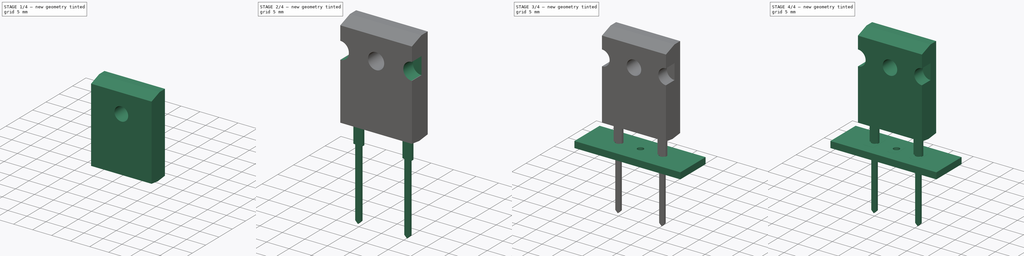
[diagram: build sequence overview — one tinted view per stage of 4, left to right]
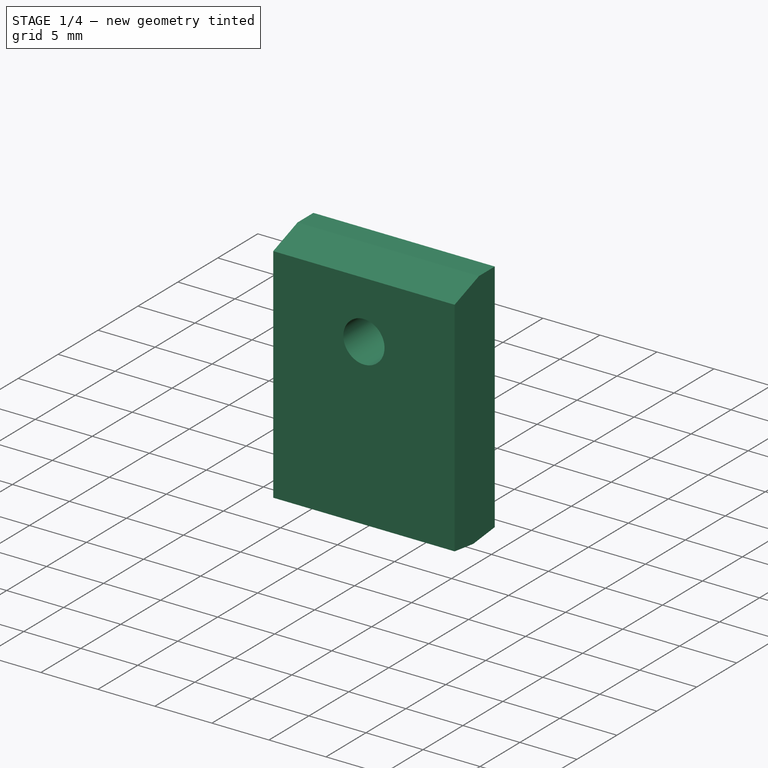
[diagram: stage 1 of 4 — iso view after this stage's code; geometry added in this stage tinted green]
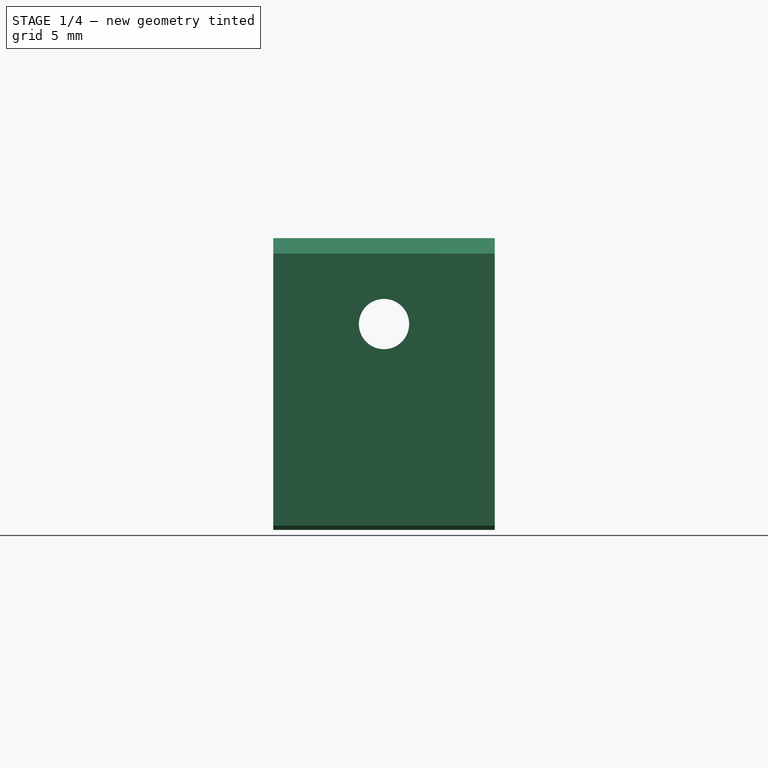
[diagram: stage 1 of 4 — front view after this stage's code; geometry added in this stage tinted green]
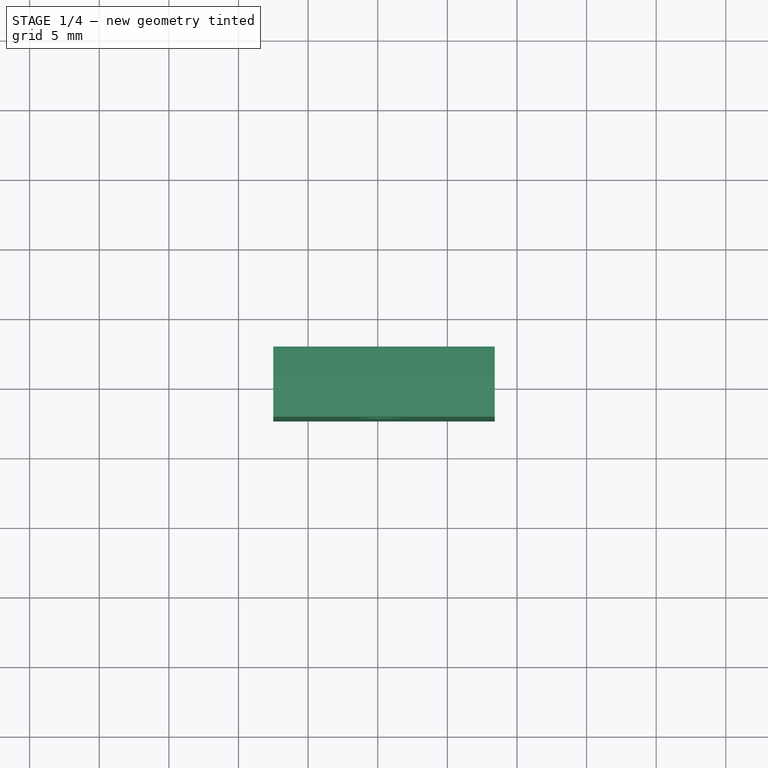
[diagram: stage 1 of 4 — top view after this stage's code; geometry added in this stage tinted green]
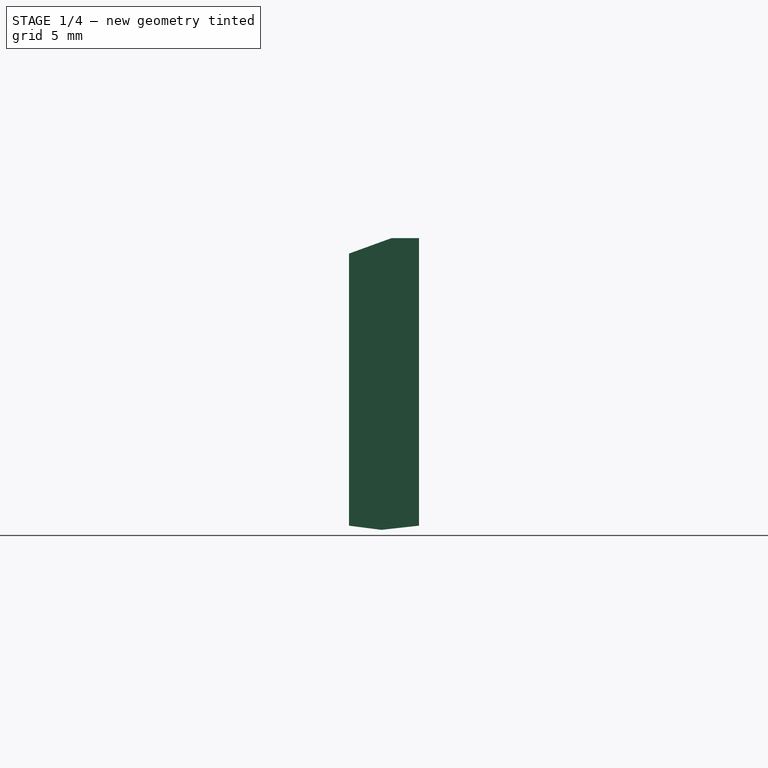
[diagram: stage 1 of 4 — right view after this stage's code; geometry added in this stage tinted green]
FCSTD DOCUMENT  (FreeCAD 0.16R6712 (Git))
Label: TO-247-2_Vertical
License: All rights reserved
LicenseURL: http://en.wikipedia.org/wiki/All_rights_reserved
objects: Part::FeaturePython×7, Sketcher::SketchObject×6, PartDesign::Pad×3, PartDesign::Pocket×3, App::DocumentObjectGroup×1, Part::MultiFuse×1
note: 26 computed .brp shape members not serialized (recipe doc carries the construction recipe); baked Part::Feature solids carry a one-line shape summary decoded from their .brp

FEATURE [Sketcher::SketchObject] Sketch001
  Placement = pos=(5.45,0,0) rot=(0.57735,0.57735,0.57735;2.0944rad)
  expr: Constraints[18] = 5.03 - 1.98
  sketch-geometry (7):
    g0: LineSegment StartX=0 StartY=4.32 StartZ=0 EndX=-2.33 EndY=4.62 EndZ=0
    g1: LineSegment StartX=-2.33 StartY=4.62 StartZ=0 EndX=-2.33 EndY=24.1599 EndZ=0
    g2: LineSegment StartX=-2.33 StartY=24.1599 StartZ=0 EndX=0.72 EndY=25.27 EndZ=0
    g3: LineSegment StartX=0.72 StartY=25.27 StartZ=0 EndX=2.7 EndY=25.27 EndZ=0
    g4: LineSegment StartX=2.7 StartY=25.27 StartZ=0 EndX=2.7 EndY=4.62 EndZ=0
    g5: LineSegment StartX=2.7 StartY=4.62 StartZ=0 EndX=0 EndY=4.32 EndZ=0
    g6: LineSegment [constr] StartX=-2.33 StartY=4.62 StartZ=0 EndX=2.7 EndY=4.62 EndZ=0
  constraints (20):
    c: PointOnObject(g0,g-2)
    c: Coincident(g1,g0)
    c: Vertical(g1)
    c: Coincident(g2,g1)
    c: Horizontal(g3)
    c: Coincident(g4,g3)
    c: Vertical(g4)
    c: Coincident(g5,g4)
    c: Coincident(g5,g0)
    c: Coincident(g6,g0)
    c: Coincident(g6,g4)
    c: Horizontal(g6)
    c: Angle(g1,g2) = 1.91986
    c: DistanceX(g0,g4) = 2.7
    c: DistanceX(g1,g3) = 5.03
    c: DistanceY(g0,g4) = 0.3
    c: DistanceY(g0,g3) = 20.95
    c: Coincident(g2,g3)
    c: DistanceX(g1,g2) = 3.05
    c: DistanceY(g-1,g0) = 4.32
FEATURE [PartDesign::Pad] Pad001
  Length = 15.9
  Length2 = 100
  Midplane = true
  Placement = pos=(5.45,0,0) rot=(0.57735,0.57735,0.57735;2.0944rad)
  Sketch = -> Sketch001
  Type = 0
FEATURE [App::DocumentObjectGroup] TO_247_3_Vertical_fp
  Group = -> [FCrtYd_lines,FFab_lines,Filk_lines,TopPads,BotPads,THPs,newPCB]
FEATURE [Sketcher::SketchObject] Sketch006
  ExternalGeometry = -> [Pad001]
  Placement = pos=(5.45,2.7,0) rot=(0.57735,0.57735,0.57735;4.18879rad)
  Support = -> Pad001 [Face5]
  expr: Constraints[3] = 3.61 / 2
  sketch-geometry (2):
    g0: LineSegment [constr] StartX=25.27 StartY=0 StartZ=0 EndX=19.1 EndY=0 EndZ=0
    g1: Circle CenterX=19.1 CenterY=0 CenterZ=0 NormalX=0 NormalY=0 NormalZ=1 Radius=1.805
  constraints (6):
    c: PointOnObject(g0,g-3)
    c: Horizontal(g0)
    c: Coincident(g1,g0)
    c: Radius(g1) = 1.805
    c: Symmetric(g-3,g-3,g0)
    c: DistanceX(g0,g0) = 6.17
FEATURE [PartDesign::Pocket] Pocket
  Length = 5
  Placement = pos=(5.45,0,0) rot=(0.57735,0.57735,0.57735;2.0944rad)
  Sketch = -> Sketch006
  Type = 1
FEATURE [Sketcher::SketchObject] Sketch007
  ExternalGeometry = -> [Pocket]
  Placement = pos=(5.45,2.7,0) rot=(0.57735,0.57735,0.57735;4.18879rad)
  Support = -> Pocket [Face6]
  expr: Constraints[6] = 7.19 / 2
  sketch-geometry (13):
    g0: Circle CenterX=19.1 CenterY=0 CenterZ=0 NormalX=0 NormalY=0 NormalZ=1 Radius=3.595
    g1: LineSegment StartX=22.9844 StartY=-7.01 StartZ=0 EndX=6.56 EndY=-7.01 EndZ=0
    g2: LineSegment StartX=6.56 StartY=-7.01 StartZ=0 EndX=6.56 EndY=7.01 EndZ=0
    g3: GeomPoint [constr] X=6.56 Y=0 Z=0
    g4: LineSegment StartX=6.56 StartY=7.01 StartZ=0 EndX=22.9844 EndY=7.01 EndZ=0
    g5: LineSegment StartX=22.9844 StartY=7.01 StartZ=0 EndX=24.08 EndY=4 EndZ=0
    g6: LineSegment StartX=24.08 StartY=4 StartZ=0 EndX=24.08 EndY=3.25 EndZ=0
    g7: LineSegment StartX=24.08 StartY=3.25 StartZ=0 EndX=23.58 EndY=3.25 EndZ=0
    g8: LineSegment StartX=23.58 StartY=3.25 StartZ=0 EndX=23.58 EndY=-3.25 EndZ=0
    g9: LineSegment StartX=23.58 StartY=-3.25 StartZ=0 EndX=24.08 EndY=-3.25 EndZ=0
    g10: LineSegment StartX=24.08 StartY=-3.25 StartZ=0 EndX=24.08 EndY=-4 EndZ=0
    g11: LineSegment StartX=24.08 StartY=-4 StartZ=0 EndX=22.9844 EndY=-7.01 EndZ=0
    g12: GeomPoint [constr] X=23.58 Y=0 Z=0
  constraints (35):
    c: Coincident(g0,g-3)
    c: Coincident(g1,g2)
    c: Horizontal(g1)
    c: Vertical(g2)
    c: PointOnObject(g3,g-1)
    c: Symmetric(g2,g2,g3)
    c: Radius(g0) = 3.595
    c: Coincident(g4,g2)
    c: Horizontal(g4)
    c: Coincident(g5,g4)
    c: Coincident(g6,g5)
    c: Coincident(g7,g6)
    c: Coincident(g8,g7)
    c: Vertical(g8)
    c: Coincident(g8,g9)
    c: Horizontal(g9)
    c: Horizontal(g7)
    c: Equal(g7,g9)
    c: Vertical(g6)
    c: Coincident(g10,g9)
    c: Vertical(g10)
    c: Coincident(g11,g10)
    c: Equal(g6,g10)
    c: Equal(g1,g4)
    c: Coincident(g1,g11)
    c: PointOnObject(g12,g-1)
    c: Symmetric(g8,g8,g12)
    c: DistanceX(g9,g-4) = 1.19
    c: DistanceX(g1,g10) = 17.52
    c: DistanceY(g2,g2) = 14.02
    c: DistanceY(g8,g8) = 6.5
    c: DistanceY(g6,g6) = 0.75
    c: Equal(g11,g5)
    c: Angle(g4,g5) = 1.91986
    c: DistanceX(g7,g7) = 0.5
FEATURE [PartDesign::Pocket] Pocket001
  Length = 0.05
  Placement = pos=(5.45,0,0) rot=(0.57735,0.57735,0.57735;2.0944rad)
  Sketch = -> Sketch007
  Type = 0
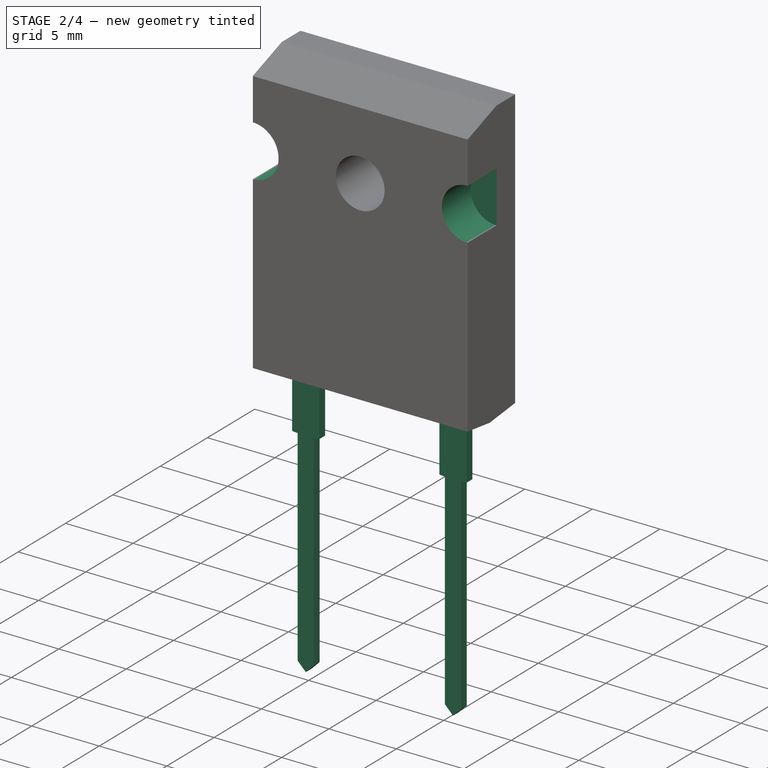
[diagram: stage 2 of 4 — iso view after this stage's code; geometry added in this stage tinted green]
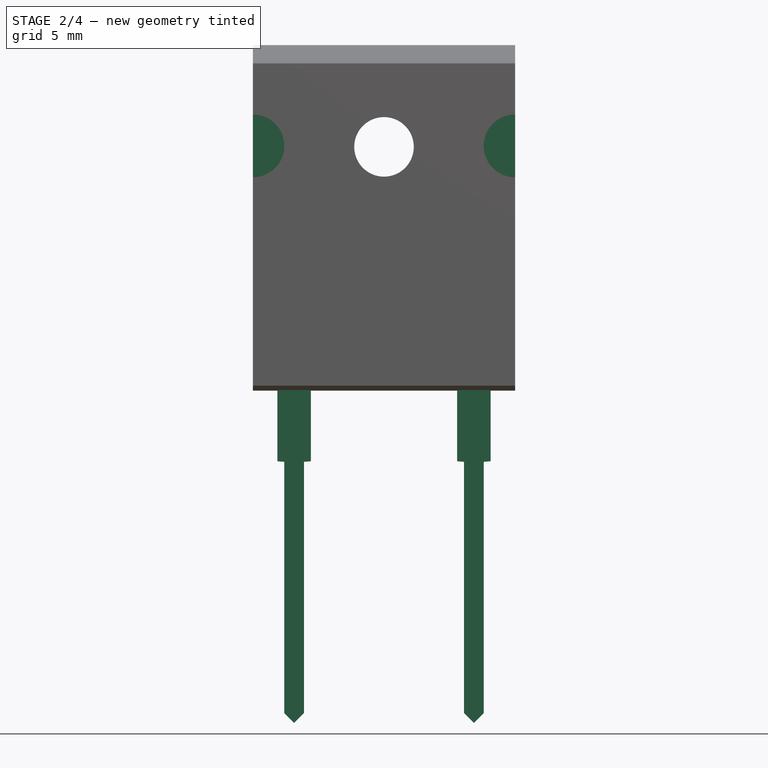
[diagram: stage 2 of 4 — front view after this stage's code; geometry added in this stage tinted green]
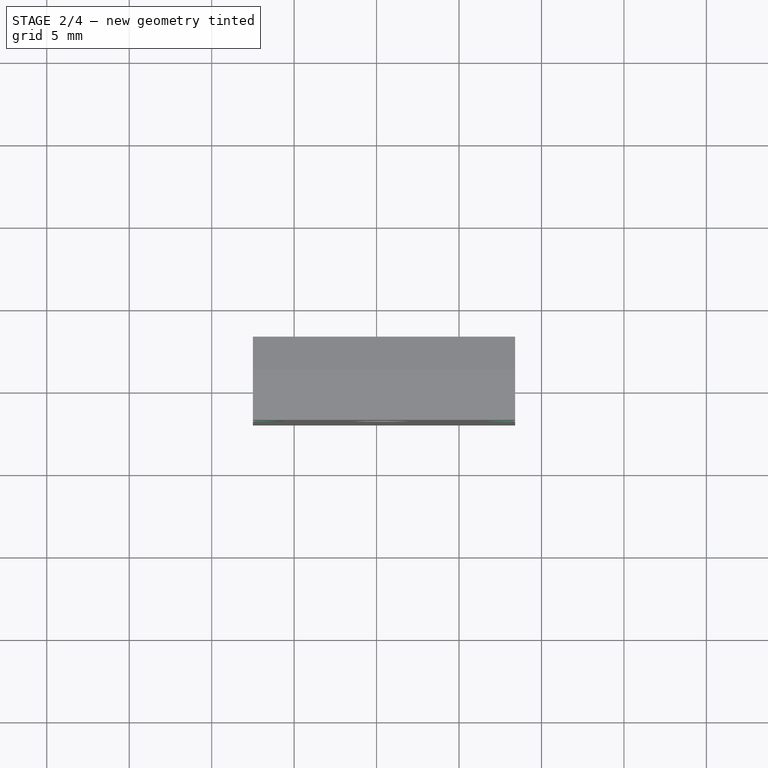
[diagram: stage 2 of 4 — top view after this stage's code; geometry added in this stage tinted green]
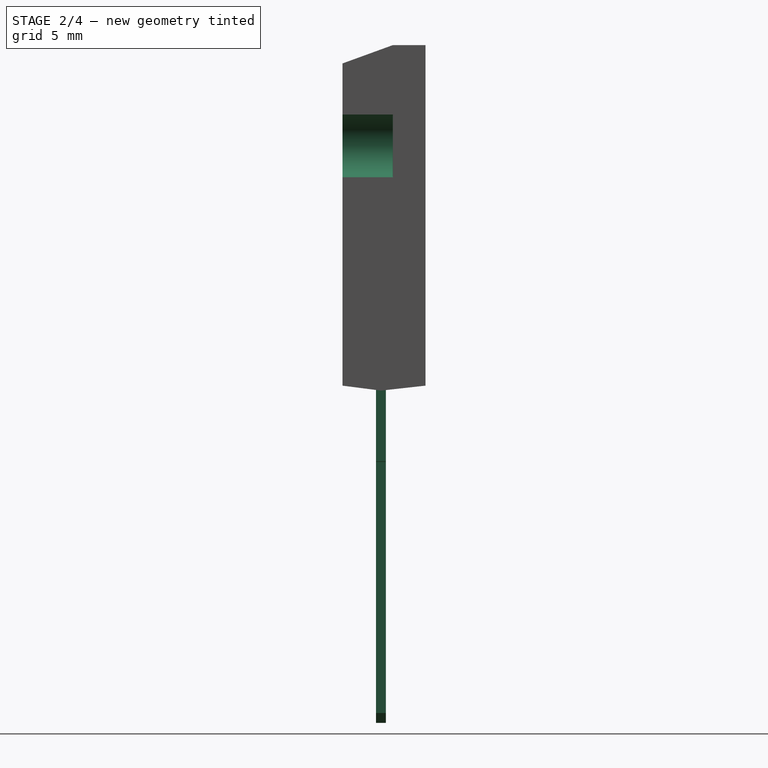
[diagram: stage 2 of 4 — right view after this stage's code; geometry added in this stage tinted green]
FEATURE [Sketcher::SketchObject] Sketch
  Placement = pos=(0,0,0) rot=(1,0,0;1.5708rad)
  expr: Constraints[25] = 20.18 - 4.35
  expr: Constraints[22] = 5
  sketch-geometry (34):
    g0: LineSegment [constr] StartX=-0.6 StartY=0 StartZ=0 EndX=0.6 EndY=0 EndZ=0
    g1: LineSegment [constr] StartX=-1.015 StartY=0.0363078 StartZ=0 EndX=1.015 EndY=0.0363078 EndZ=0
    g2: GeomPoint [constr] X=0 Y=0.0363078 Z=0
    g3: LineSegment [constr] StartX=-0.6 StartY=-15.23 StartZ=0 EndX=0.6 EndY=-15.23 EndZ=0
    g4: GeomPoint [constr] X=0 Y=-15.23 Z=0
    g5: LineSegment StartX=-1.015 StartY=0.0363078 StartZ=0 EndX=-0.6 EndY=0 EndZ=0
    g6: LineSegment StartX=-0.6 StartY=0 StartZ=0 EndX=-0.6 EndY=-15.23 EndZ=0
    g7: LineSegment StartX=-0.6 StartY=-15.23 StartZ=0 EndX=0 EndY=-15.83 EndZ=0
    g8: LineSegment StartX=0 StartY=-15.83 StartZ=0 EndX=0.6 EndY=-15.23 EndZ=0
    g9: LineSegment StartX=0.6 StartY=-15.23 StartZ=0 EndX=0.6 EndY=0 EndZ=0
    g10: LineSegment StartX=0.6 StartY=0 StartZ=0 EndX=1.015 EndY=0.0363078 EndZ=0
    g11: LineSegment StartX=1.015 StartY=0.0363078 StartZ=0 EndX=1.015 EndY=5 EndZ=0
    g12: LineSegment StartX=1.015 StartY=5 StartZ=0 EndX=-1.015 EndY=5 EndZ=0
    g13: LineSegment StartX=-1.015 StartY=5 StartZ=0 EndX=-1.015 EndY=0.0363078 EndZ=0
    g14: LineSegment [constr] StartX=0 StartY=-15.83 StartZ=0 EndX=0 EndY=0.0363078 EndZ=0
    g15: LineSegment [constr] StartX=10.3 StartY=0 StartZ=0 EndX=11.5 EndY=0 EndZ=0
    g16: LineSegment [constr] StartX=9.885 StartY=0.0363078 StartZ=0 EndX=11.915 EndY=0.0363078 EndZ=0
    g17: GeomPoint [constr] X=10.9 Y=0.0363078 Z=0
    g18: LineSegment [constr] StartX=10.3 StartY=-15.23 StartZ=0 EndX=11.5 EndY=-15.23 EndZ=0
    g19: GeomPoint [constr] X=10.9 Y=-15.23 Z=0
    g20: LineSegment StartX=9.885 StartY=0.0363078 StartZ=0 EndX=10.3 EndY=0 EndZ=0
    g21: LineSegment StartX=10.3 StartY=0 StartZ=0 EndX=10.3 EndY=-15.23 EndZ=0
    g22: LineSegment StartX=10.3 StartY=-15.23 StartZ=0 EndX=10.9 EndY=-15.83 EndZ=0
    g23: LineSegment StartX=10.9 StartY=-15.83 StartZ=0 EndX=11.5 EndY=-15.23 EndZ=0
    g24: LineSegment StartX=11.5 StartY=-15.23 StartZ=0 EndX=11.5 EndY=0 EndZ=0
    g25: LineSegment StartX=11.5 StartY=0 StartZ=0 EndX=11.915 EndY=0.0363078 EndZ=0
    g26: LineSegment StartX=11.915 StartY=0.0363078 StartZ=0 EndX=11.915 EndY=5 EndZ=0
    g27: LineSegment StartX=11.915 StartY=5 StartZ=0 EndX=9.885 EndY=5 EndZ=0
    g28: LineSegment StartX=9.885 StartY=5 StartZ=0 EndX=9.885 EndY=0.0363078 EndZ=0
    g29: LineSegment [constr] StartX=10.9 StartY=-15.83 StartZ=0 EndX=10.9 EndY=0.0363078 EndZ=0
    g30: GeomPoint [constr] X=10.9 Y=0 Z=0
    g31: LineSegment [constr] StartX=0 StartY=-15.83 StartZ=0 EndX=10.9 EndY=-15.83 EndZ=0
    g32: LineSegment [constr] StartX=-1.015 StartY=5 StartZ=0 EndX=9.885 EndY=5 EndZ=0
    g33: GeomPoint [constr] X=0 Y=0 Z=0
  constraints (80):
    c: DistanceX(g0,g0) = 1.2
    c: Horizontal(g1)
    c: PointOnObject(g2,g-2)
    c: Symmetric(g1,g1,g2)
    c: Horizontal(g3)
    c: Equal(g0,g3) = 0.8
    c: PointOnObject(g4,g-2)
    c: Symmetric(g3,g3,g4)
    c: Coincident(g5,g1)
    c: Coincident(g5,g0)
    c: Coincident(g6,g0)
    c: Coincident(g6,g3)
    c: Coincident(g7,g3)
    c: Coincident(g8,g7)
    c: Coincident(g8,g3)
    c: PointOnObject(g7,g-2)
    c: Coincident(g9,g3)
    c: Coincident(g9,g0)
    c: Coincident(g10,g0)
    c: Coincident(g10,g1)
    c: Horizontal(g12)
    c: Angle(g9,g8) = 2.35619
    c: DistanceY(g-1,g12) = 5
    c: Coincident(g14,g7)
    c: Coincident(g14,g2)
    c: DistanceY(g7,g-1) = 15.83
    c: Horizontal(g15)
    c: Equal(g0,g15) = 0.8
    c: Horizontal(g16)
    c: Symmetric(g16,g16,g17)
    c: Horizontal(g18)
    c: Equal(g15,g18) = 0.8
    c: Symmetric(g18,g18,g19)
    c: Coincident(g20,g16)
    c: Coincident(g20,g15)
    c: Coincident(g21,g15)
    c: Coincident(g21,g18)
    c: Coincident(g22,g18)
    c: Coincident(g23,g22)
    c: Coincident(g23,g18)
    c: Coincident(g24,g18)
    c: Coincident(g24,g15)
    c: Coincident(g25,g15)
    c: Coincident(g25,g16)
    c: Horizontal(g27)
    c: Angle(g24,g23) = 2.35619
    c: Coincident(g29,g22)
    c: Coincident(g29,g17)
    c: Vertical(g29)
    c: PointOnObject(g30,g29)
    c: Symmetric(g15,g15,g30)
    c: PointOnObject(g19,g29)
    c: Coincident(g31,g7)
    c: Coincident(g31,g22)
    c: Horizontal(g31)
    c: PointOnObject(g15,g-1)
    c: Coincident(g32,g12)
    c: Coincident(g32,g27)
    c: Horizontal(g32)
    c: Coincident(g1,g13)
    c: Coincident(g12,g13)
    c: Coincident(g11,g12)
    c: Coincident(g1,g11)
    c: Vertical(g11)
    c: Vertical(g13)
    c: Coincident(g27,g28)
    c: Coincident(g26,g27)
    c: Coincident(g16,g28)
    c: Coincident(g16,g26)
    c: Vertical(g28)
    c: Vertical(g26)
    c: DistanceX(g12,g12) = 2.03
    c: Equal(g12,g27)
    c: Angle(g20,g28) = 1.65806
    c: Angle(g11,g10) = 1.65806
    c: Horizontal(g0)
    c: PointOnObject(g33,g14)
    c: Symmetric(g0,g0,g33)
    c: Coincident(g33,g-1)
    c: DistanceX(g31,g31) = 10.9
FEATURE [PartDesign::Pad] Pad
  Length = 0.6
  Length2 = 100
  Midplane = true
  Placement = pos=(0,0,0) rot=(1,0,0;1.5708rad)
  Reversed = true
  Sketch = -> Sketch
  Type = 0
  expr: Length = 0.6
FEATURE [Sketcher::SketchObject] Sketch005
  Placement = pos=(0,1.7,0) rot=(1,0,0;1.5708rad)
  sketch-geometry (6):
    g0: LineSegment StartX=-2.05 StartY=25.1 StartZ=0 EndX=12.95 EndY=25.1 EndZ=0
    g1: LineSegment StartX=12.95 StartY=25.1 StartZ=0 EndX=12.95 EndY=7.1 EndZ=0
    g2: LineSegment StartX=12.95 StartY=7.1 StartZ=0 EndX=-2.05 EndY=7.1 EndZ=0
    g3: LineSegment StartX=-2.05 StartY=7.1 StartZ=0 EndX=-2.05 EndY=25.1 EndZ=0
    g4: Circle CenterX=5.45 CenterY=19.1 CenterZ=0 NormalX=0 NormalY=0 NormalZ=1 Radius=3.7
    g5: LineSegment [constr] StartX=5.45 StartY=19.1 StartZ=0 EndX=5.45 EndY=25.1 EndZ=0
  constraints (17):
    c: Coincident(g0,g1)
    c: Coincident(g1,g2)
    c: Coincident(g2,g3)
    c: Coincident(g3,g0)
    c: Horizontal(g0)
    c: Horizontal(g2)
    c: Vertical(g1)
    c: Vertical(g3)
    c: DistanceX(g-1,g4) = 5.45
    c: Radius(g4) = 3.7
    c: DistanceY(g-1,g4) = 19.1
    c: Coincident(g5,g4)
    c: Vertical(g5)
    c: Symmetric(g0,g0,g5)
    c: DistanceY(g1,g1) = 18
    c: DistanceX(g0,g0) = 15
    c: DistanceY(g5,g5) = 6
FEATURE [PartDesign::Pad] Pad003
  Length = 1.97
  Length2 = 100
  Midplane = true
  Placement = pos=(0,1.7,0) rot=(1,0,0;1.5708rad)
  Sketch = -> Sketch005
  Type = 0
FEATURE [Sketcher::SketchObject] Sketch008
  ExternalGeometry = -> [Pocket001]
  Placement = pos=(5.45,-2.33,0) rot=(-0.57735,-0.57735,0.57735;4.18879rad)
  Support = -> Pocket001 [Face3]
  sketch-geometry (5):
    g0: ArcOfCircle CenterX=-19.1599 CenterY=7.95 CenterZ=0 NormalX=0 NormalY=0 NormalZ=1 Radius=1.905 StartAngle=3.14159 EndAngle=6.28319
    g1: ArcOfCircle CenterX=-19.1599 CenterY=-7.95 CenterZ=0 NormalX=0 NormalY=0 NormalZ=1 Radius=1.905 StartAngle=0 EndAngle=3.14159
    g2: LineSegment [constr] StartX=-19.1599 StartY=7.95 StartZ=0 EndX=-19.1599 EndY=-7.95 EndZ=0
    g3: LineSegment StartX=-21.0649 StartY=7.95 StartZ=0 EndX=-17.2549 EndY=7.95 EndZ=0
    g4: LineSegment StartX=-21.0649 StartY=-7.95 StartZ=0 EndX=-17.2549 EndY=-7.95 EndZ=0
  constraints (16):
    c: PointOnObject(g0,g-3)
    c: PointOnObject(g0,g-3)
    c: PointOnObject(g0,g-3)
    c: PointOnObject(g1,g-4)
    c: PointOnObject(g1,g-4)
    c: PointOnObject(g1,g-4)
    c: Coincident(g2,g0)
    c: Coincident(g2,g1)
    c: Vertical(g2)
    c: Equal(g0,g1)
    c: DistanceX(g0,g0) = 3.81
    c: DistanceX(g-3,g0) = 5
    c: Coincident(g3,g0)
    c: Coincident(g3,g0)
    c: Coincident(g4,g1)
    c: Coincident(g4,g1)
FEATURE [PartDesign::Pocket] Pocket002
  Length = 3.05
  Placement = pos=(5.45,0,0) rot=(0.57735,0.57735,0.57735;2.0944rad)
  Sketch = -> Sketch008
  Type = 0
  expr: Length = 5.03 - 1.98
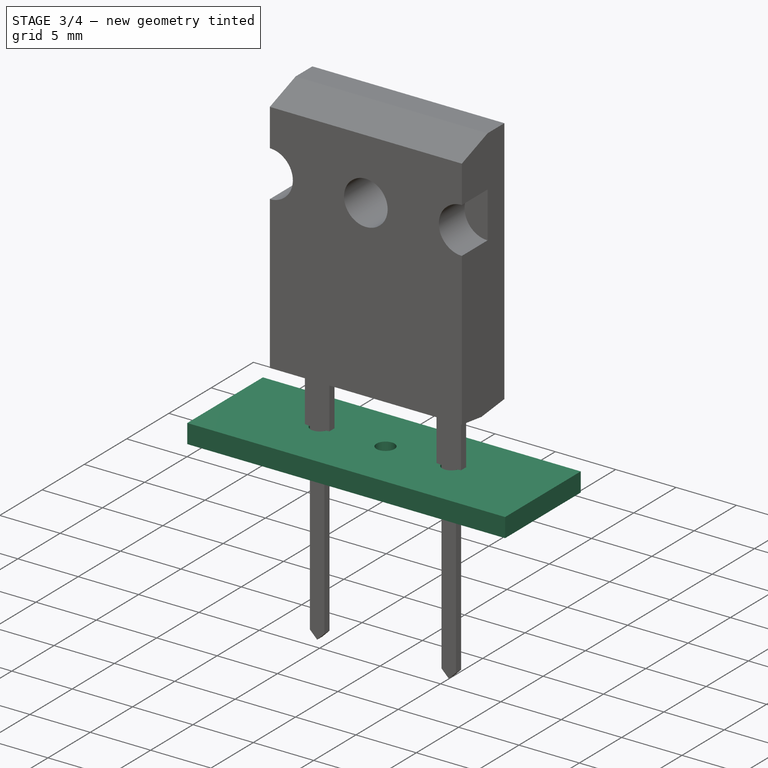
[diagram: stage 3 of 4 — iso view after this stage's code; geometry added in this stage tinted green]
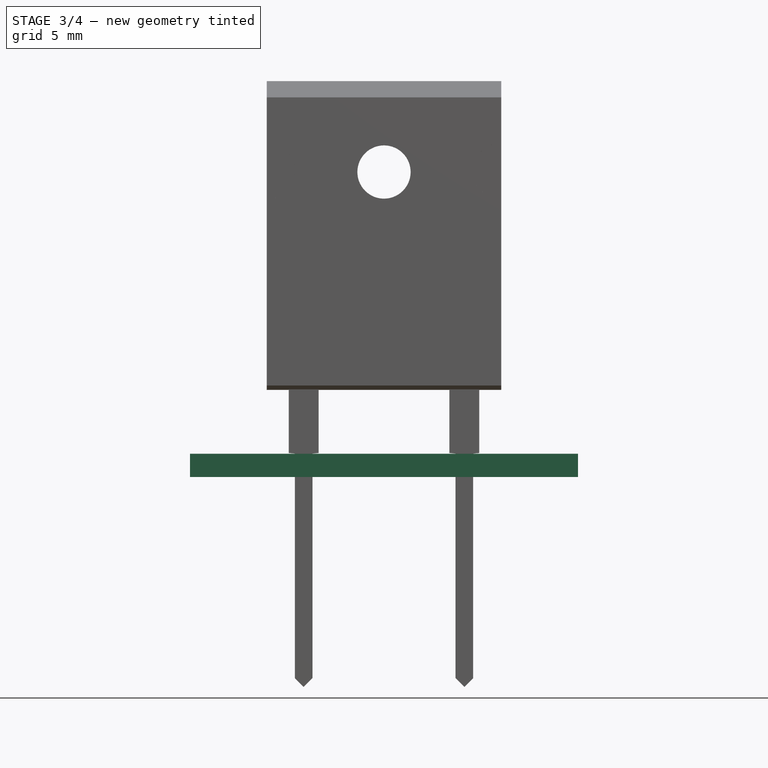
[diagram: stage 3 of 4 — front view after this stage's code; geometry added in this stage tinted green]
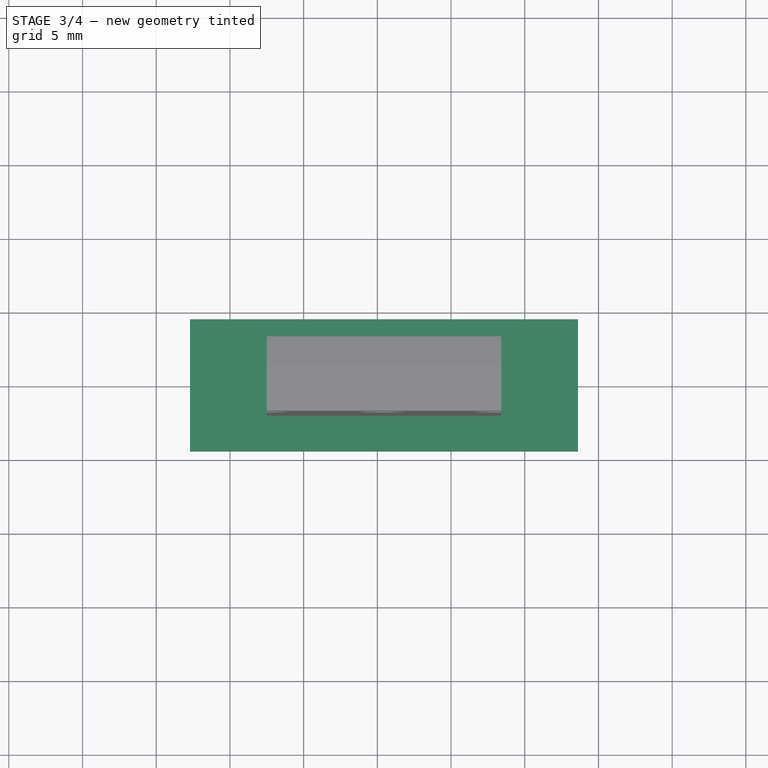
[diagram: stage 3 of 4 — top view after this stage's code; geometry added in this stage tinted green]
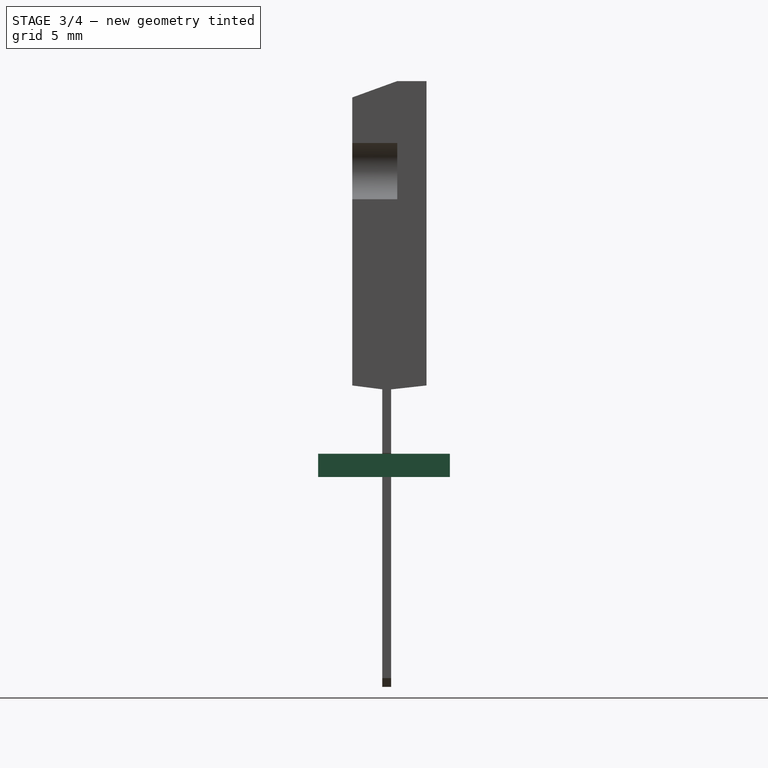
[diagram: stage 3 of 4 — right view after this stage's code; geometry added in this stage tinted green]
FEATURE [Part::FeaturePython] newPCB  label="Pcb"  # a2plus imported part (geometry in sourceFile) (typed FeaturePython)
  fixedPosition = true
FEATURE [Part::MultiFuse] Pocket002_mp_cp  label="TO-247-2_Vertical"
  Shapes = -> [Pocket002,Pad003,Pad]
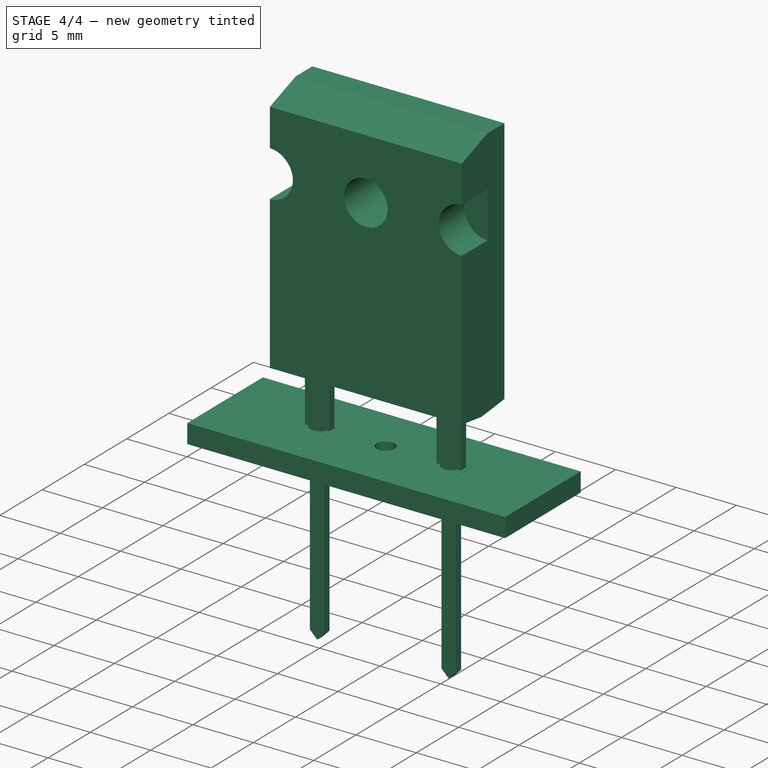
[diagram: stage 4 of 4 — iso view after this stage's code; geometry added in this stage tinted green]
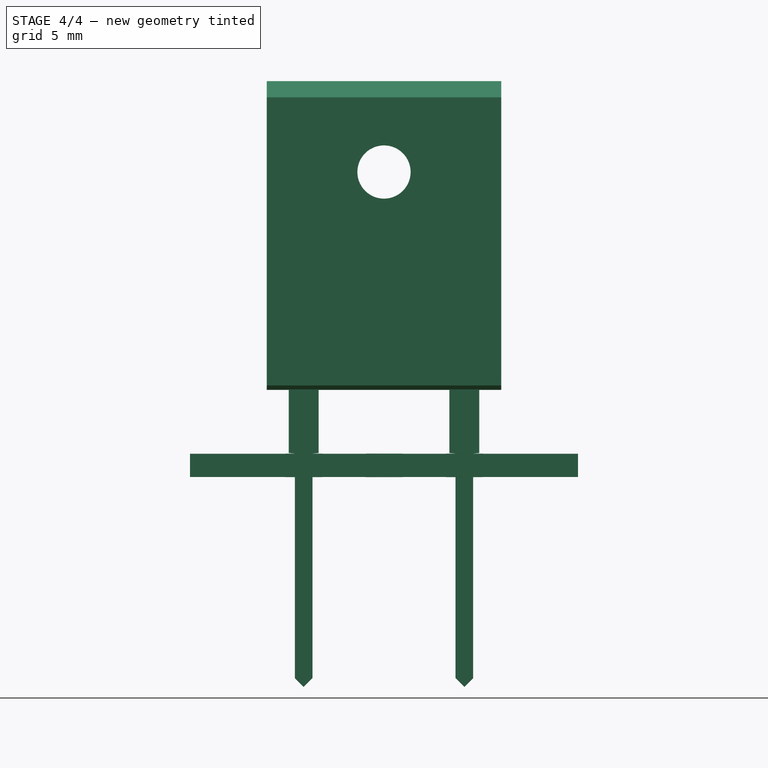
[diagram: stage 4 of 4 — front view after this stage's code; geometry added in this stage tinted green]
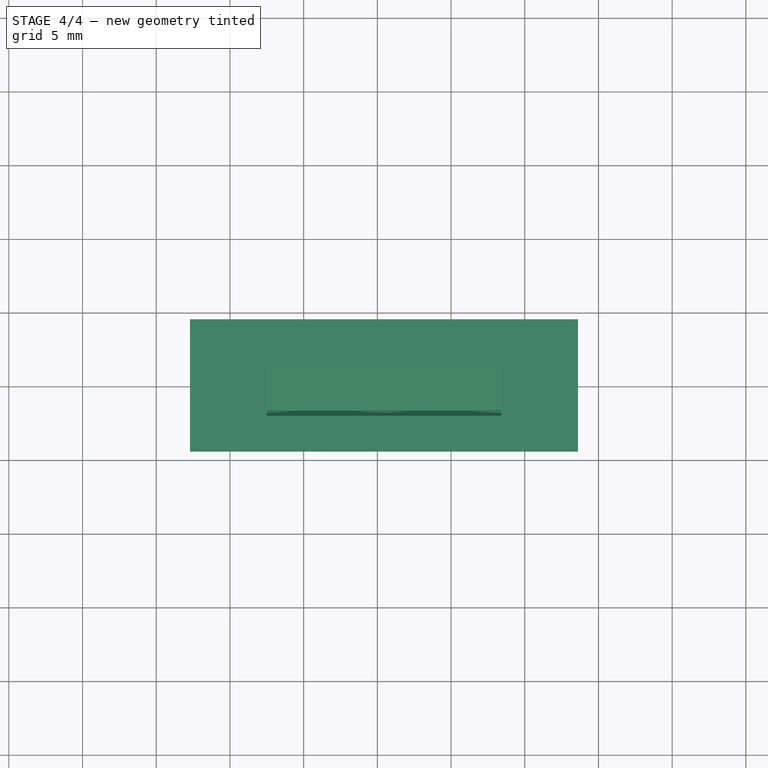
[diagram: stage 4 of 4 — top view after this stage's code; geometry added in this stage tinted green]
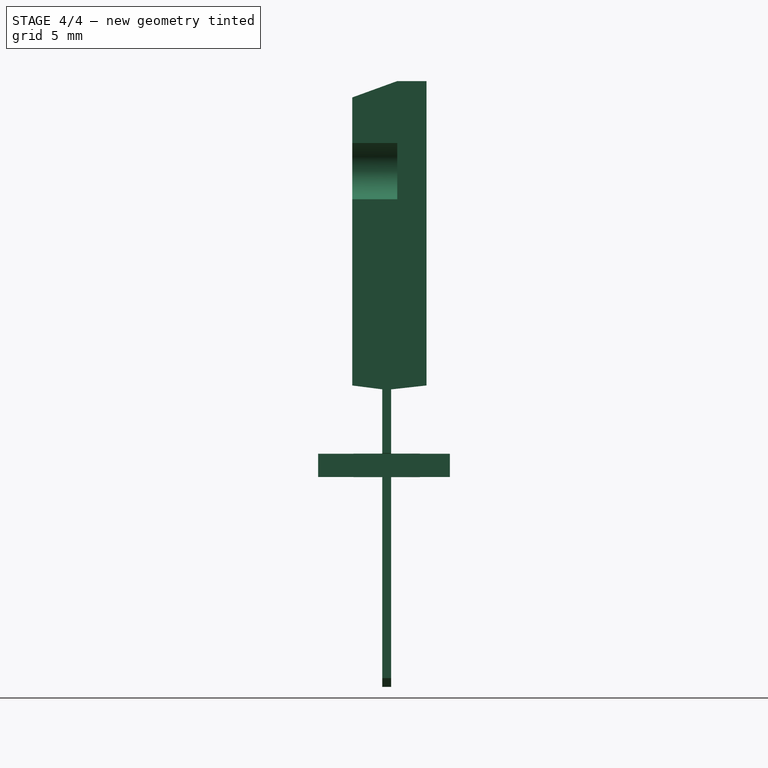
[diagram: stage 4 of 4 — right view after this stage's code; geometry added in this stage tinted green]
FEATURE [Part::FeaturePython] FCrtYd_lines  label="FCrtYd"  # a2plus imported part (geometry in sourceFile) (typed FeaturePython)
  fixedPosition = true
FEATURE [Part::FeaturePython] FFab_lines  label="FFab"  # a2plus imported part (geometry in sourceFile) (typed FeaturePython)
  fixedPosition = true
FEATURE [Part::FeaturePython] Filk_lines  label="FrontSilk"  # a2plus imported part (geometry in sourceFile) (typed FeaturePython)
  fixedPosition = true
FEATURE [Part::FeaturePython] TopPads  # a2plus imported part (geometry in sourceFile) (typed FeaturePython)
  fixedPosition = true
FEATURE [Part::FeaturePython] BotPads  # a2plus imported part (geometry in sourceFile) (typed FeaturePython)
  fixedPosition = true
FEATURE [Part::FeaturePython] THPs  label="PTHs"  # a2plus imported part (geometry in sourceFile) (typed FeaturePython)
  fixedPosition = true
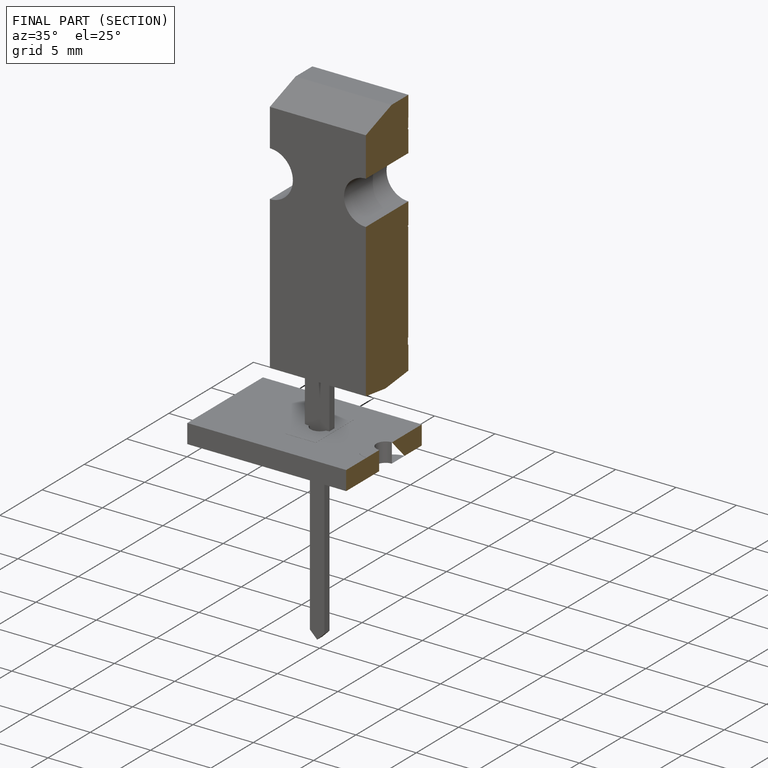
[diagram: finished part — half-section view (interior)]
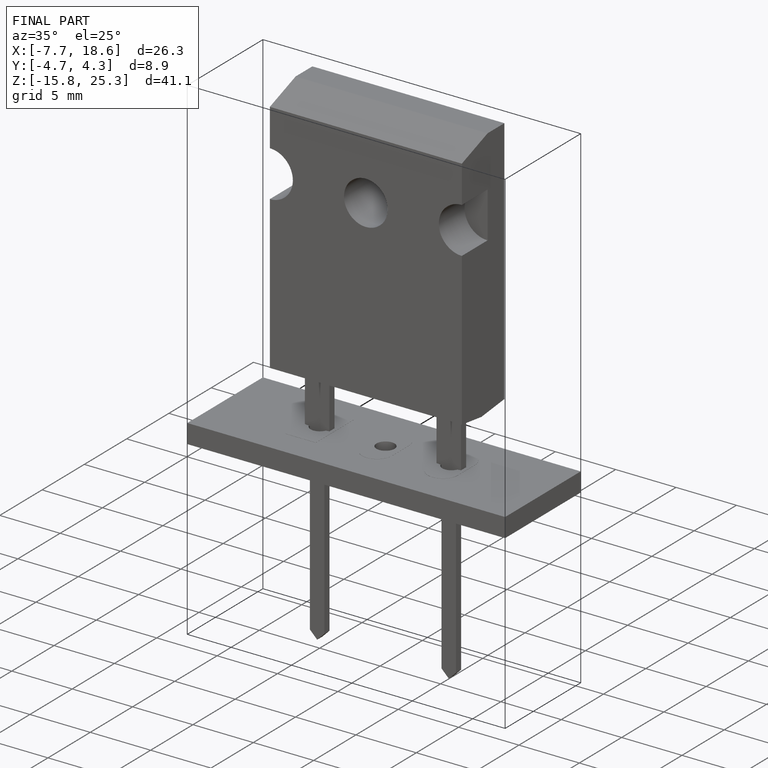
[diagram: finished part — iso view with bounding-box wireframe]
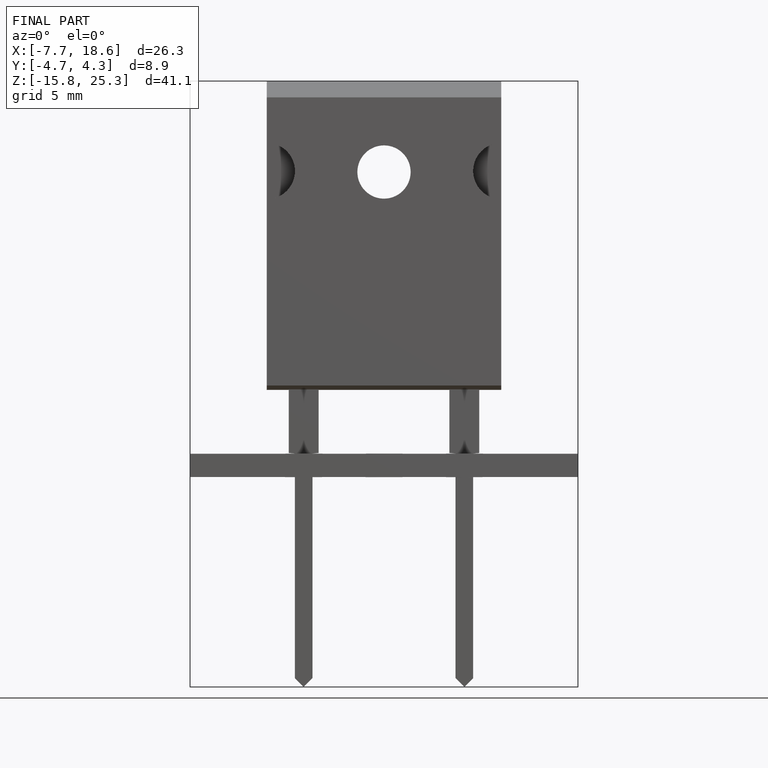
[diagram: finished part — front view with bounding-box wireframe]
